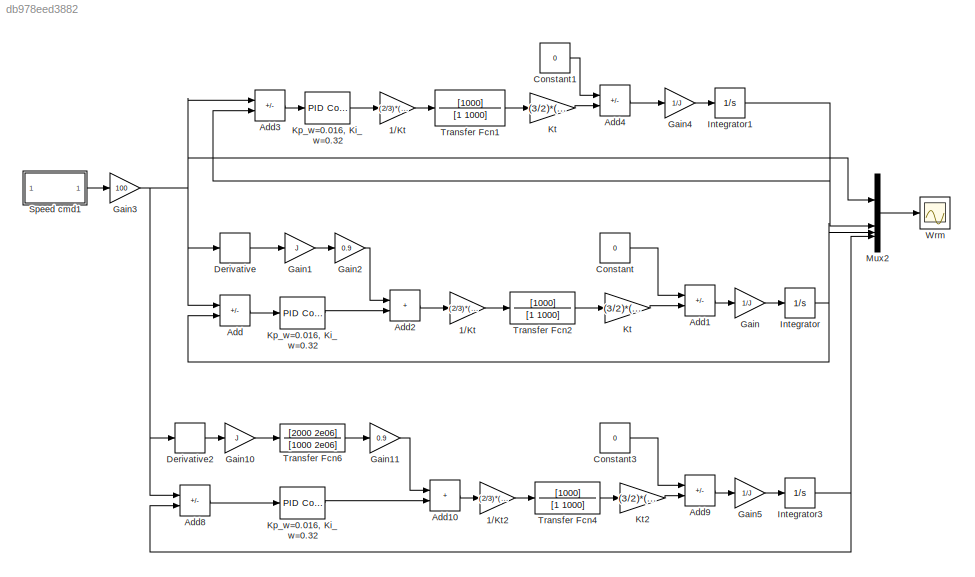
MODEL slx_db978eed3882
KIND model
CONFIG AbsTol = auto
CONFIG EnableMultiTasking = off
CONFIG FixedStep = auto
CONFIG MaxStep = auto
CONFIG MinStep = auto
CONFIG RelTol = 1e-3
CONFIG SampleTimeConstraint = Unconstrained
CONFIG SolverName = VariableStepAuto
CONFIG StartTime = 0.0
CONFIG StopTime = 2
BLOCK [Gain] 1//Kt
  Gain = (2/3)*(2/4)*(1/0.03)
BLOCK [Gain] 1//Kt 
  Gain = (2/3)*(2/4)*(1/0.03)
BLOCK [Gain] 1//Kt2
  Gain = (2/3)*(2/4)*(1/0.03)
BLOCK [Sum] Add
  IconShape = rectangular
  Inputs = +-
BLOCK [Sum] Add1
  IconShape = rectangular
  Inputs = -+
BLOCK [Sum] Add10
  IconShape = rectangular
BLOCK [Sum] Add2
  IconShape = rectangular
BLOCK [Sum] Add3
  IconShape = rectangular
  Inputs = +-
BLOCK [Sum] Add4
  IconShape = rectangular
  Inputs = -+
BLOCK [Sum] Add8
  IconShape = rectangular
  Inputs = +-
BLOCK [Sum] Add9
  IconShape = rectangular
  Inputs = -+
BLOCK [Constant] Constant
  Value = 0
BLOCK [Constant] Constant1
  Value = 0
BLOCK [Constant] Constant3
  Value = 0
BLOCK [Derivative] Derivative
BLOCK [Derivative] Derivative2
BLOCK [Gain] Gain
  Gain = 1/J
BLOCK [Gain] Gain1
  Gain = J
BLOCK [Gain] Gain10
  Gain = J
BLOCK [Gain] Gain11
  Gain = 0.9
BLOCK [Gain] Gain2
  Gain = 0.9
BLOCK [Gain] Gain3
  Gain = 100
BLOCK [Gain] Gain4
  Gain = 1/J
BLOCK [Gain] Gain5
  Gain = 1/J
BLOCK [Integrator] Integrator
BLOCK [Integrator] Integrator1
BLOCK [Integrator] Integrator3
BLOCK [Reference] Kp_w=0.016, Ki_w=0.32  REF=slpidlib/PID Controller
  LibrarySourceBlock = simulink/Continuous/PID Controller
  SourceBlock = slpidlib/PID Controller
  SourceType = PID 1dof
BLOCK [Reference] Kp_w=0.016, Ki_w=0.32   REF=slpidlib/PID Controller
  LibrarySourceBlock = simulink/Continuous/PID Controller
  SourceBlock = slpidlib/PID Controller
  SourceType = PID 1dof
BLOCK [Reference] Kp_w=0.016, Ki_w=0.32    REF=slpidlib/PID Controller
  LibrarySourceBlock = simulink/Continuous/PID Controller
  SourceBlock = slpidlib/PID Controller
  SourceType = PID 1dof
BLOCK [Gain] Kt
  Gain = (3/2)*(4/2)*0.03
BLOCK [Gain] Kt 
  Gain = (3/2)*(4/2)*0.03
BLOCK [Gain] Kt2
  Gain = (3/2)*(4/2)*0.03
BLOCK [Mux] Mux2
  DisplayOption = bar
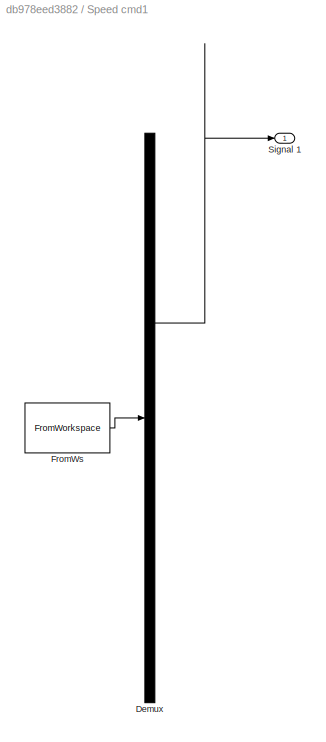
BLOCK [SubSystem] Speed cmd1
  ClipboardFcn = sigbuilder_block('clipboard');
  CloseFcn = sigbuilder_block('close');
  ContinueFcn = sigbuilder_block('continue');
  CopyFcn = sigbuilder_block('copy');
  DeleteFcn = sigbuilder_block('delete');
  LoadFcn = sigbuilder_block('load');
  MaskHideContents = on
  ModelCloseFcn = sigbuilder_block('modelClose');
  NameChangeFcn = sigbuilder_block('namechange');
  OpenFcn = sigbuilder_block('open',[437.6 199.2 550.4 400 ]);
  PauseFcn = sigbuilder_block('pause');
  PreSaveFcn = sigbuilder_block('preSave');
  StartFcn = sigbuilder_block('start');
  StopFcn = sigbuilder_block('stop');
  Tag = STV Subsys
BLOCK [Demux] Speed cmd1/Demux
  DisplayOption = none
  Outputs = 1
  Tag = STV Demux
BLOCK [FromWorkspace] Speed cmd1/FromWs
  Tag = STV FromWs
  VariableName = tuvar
BLOCK [Outport] Speed cmd1/Signal 1
  Tag = STV Outport
BLOCK [TransferFcn] Transfer Fcn1
  Denominator = [1 1000]
  Numerator = [1000]
BLOCK [TransferFcn] Transfer Fcn2
  Denominator = [1 1000]
  Numerator = [1000]
BLOCK [TransferFcn] Transfer Fcn4
  Denominator = [1 1000]
  Numerator = [1000]
BLOCK [TransferFcn] Transfer Fcn6
  Denominator = [1000 2e06]
  Numerator = [2000 2e06]
BLOCK [Scope] Wrm
  Floating = off
  NumInputPorts = 1
  ScopeSpecificationString = Simulink.scopes.TimeScopeBlockCfg('CurrentConfiguration', extmgr.ConfigurationSet(extmgr.Configuration('Core','General UI',true,'FigureColor',[1 1 1]),extmgr.Configuration('Core','Source UI',true),extmgr.Configuration('Sources','WiredSimulink',true,'DataLoggingVariableName','ScopeData1'),extmgr.Configuration('Visuals','Time Domain',true,'SerializedDisplays',{struct('MinYLimReal','97.49341','MaxYLi...<+1973ch>
LINE 1//Kt :1 -> Transfer Fcn2:1
LINE 1//Kt2:1 -> Transfer Fcn4:1
LINE 1//Kt:1 -> Transfer Fcn1:1
LINE Add10:1 -> 1//Kt2:1
LINE Add1:1 -> Gain:1
LINE Add2:1 -> 1//Kt :1
LINE Add3:1 -> Kp_w=0.016, Ki_w=0.32:1
LINE Add4:1 -> Gain4:1
LINE Add8:1 -> Kp_w=0.016, Ki_w=0.32  :1
LINE Add9:1 -> Gain5:1
LINE Add:1 -> Kp_w=0.016, Ki_w=0.32 :1
LINE Constant1:1 -> Add4:1
LINE Constant3:1 -> Add9:1
LINE Constant:1 -> Add1:1
LINE Derivative2:1 -> Gain10:1
LINE Derivative:1 -> Gain1:1
LINE Gain10:1 -> Transfer Fcn6:1
LINE Gain11:1 -> Add10:1
LINE Gain1:1 -> Gain2:1
LINE Gain2:1 -> Add2:1
NET Gain3:1 -> Add3:1, Add8:1, Add:1, Derivative2:1, Derivative:1, Mux2:1
LINE Gain4:1 -> Integrator1:1
LINE Gain5:1 -> Integrator3:1
LINE Gain:1 -> Integrator:1
NET Integrator1:1 -> Add3:2, Mux2:2
NET Integrator3:1 -> Add8:2, Mux2:4
NET Integrator:1 -> Add:2, Mux2:3
LINE Kp_w=0.016, Ki_w=0.32  :1 -> Add10:2
LINE Kp_w=0.016, Ki_w=0.32 :1 -> Add2:2
LINE Kp_w=0.016, Ki_w=0.32:1 -> 1//Kt:1
LINE Kt :1 -> Add1:2
LINE Kt2:1 -> Add9:2
LINE Kt:1 -> Add4:2
LINE Mux2:1 -> Wrm:1
LINE Speed cmd1:1 -> Gain3:1
LINE Transfer Fcn1:1 -> Kt:1
LINE Transfer Fcn2:1 -> Kt :1
LINE Transfer Fcn4:1 -> Kt2:1
LINE Transfer Fcn6:1 -> Gain11:1
note: NET lines group one-source signal fan-out (src -> all destinations, sorted); 1:1 wires keep LINE
